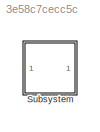
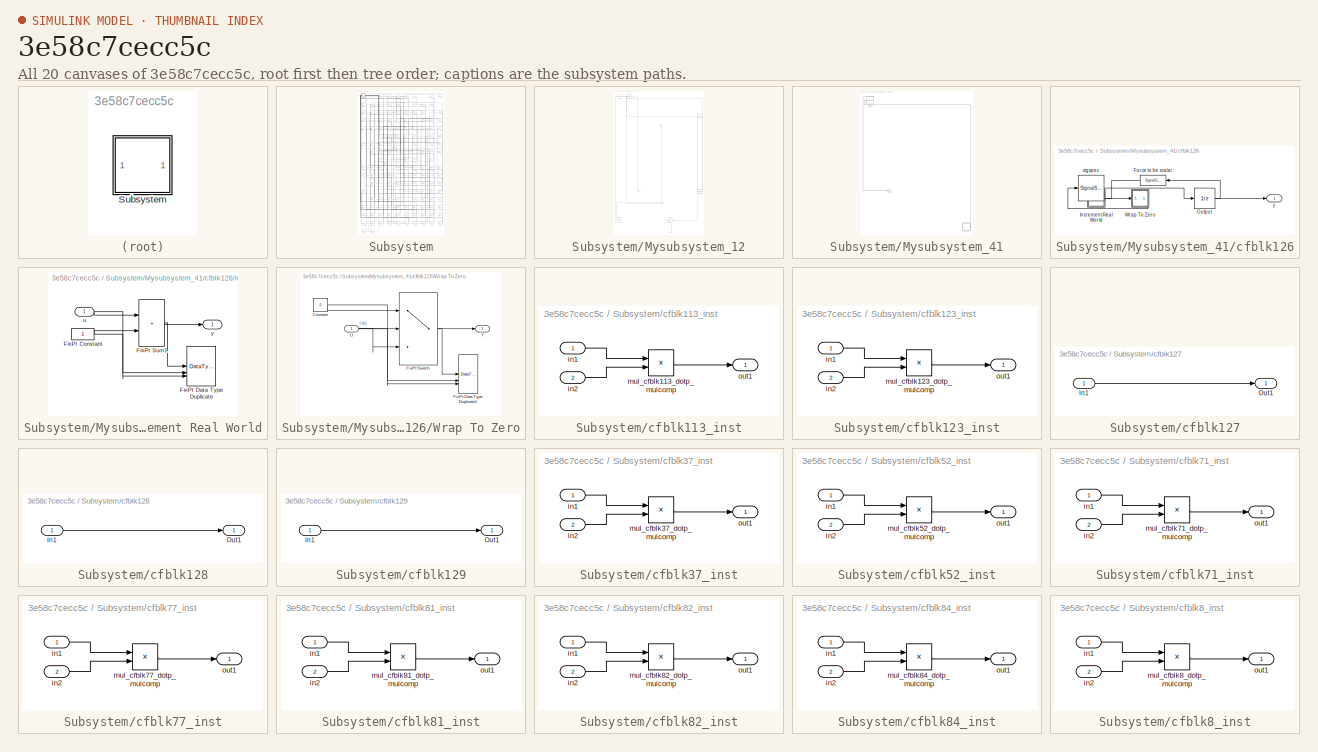
[diagram: thumbnail index - all 20 canvases of the model, root first then tree order]
MODEL slx_3e58c7cecc5c
KIND model
CONFIG AbsTol = auto
CONFIG EnableMultiTasking = off
CONFIG FixedStep = auto
CONFIG MaxStep = auto
CONFIG MinStep = auto
CONFIG RelTol = 1e-3
CONFIG SampleTimeConstraint = Unconstrained
CONFIG SolverName = VariableStepAuto
CONFIG StartTime = 0.0
CONFIG StopTime = 10.0
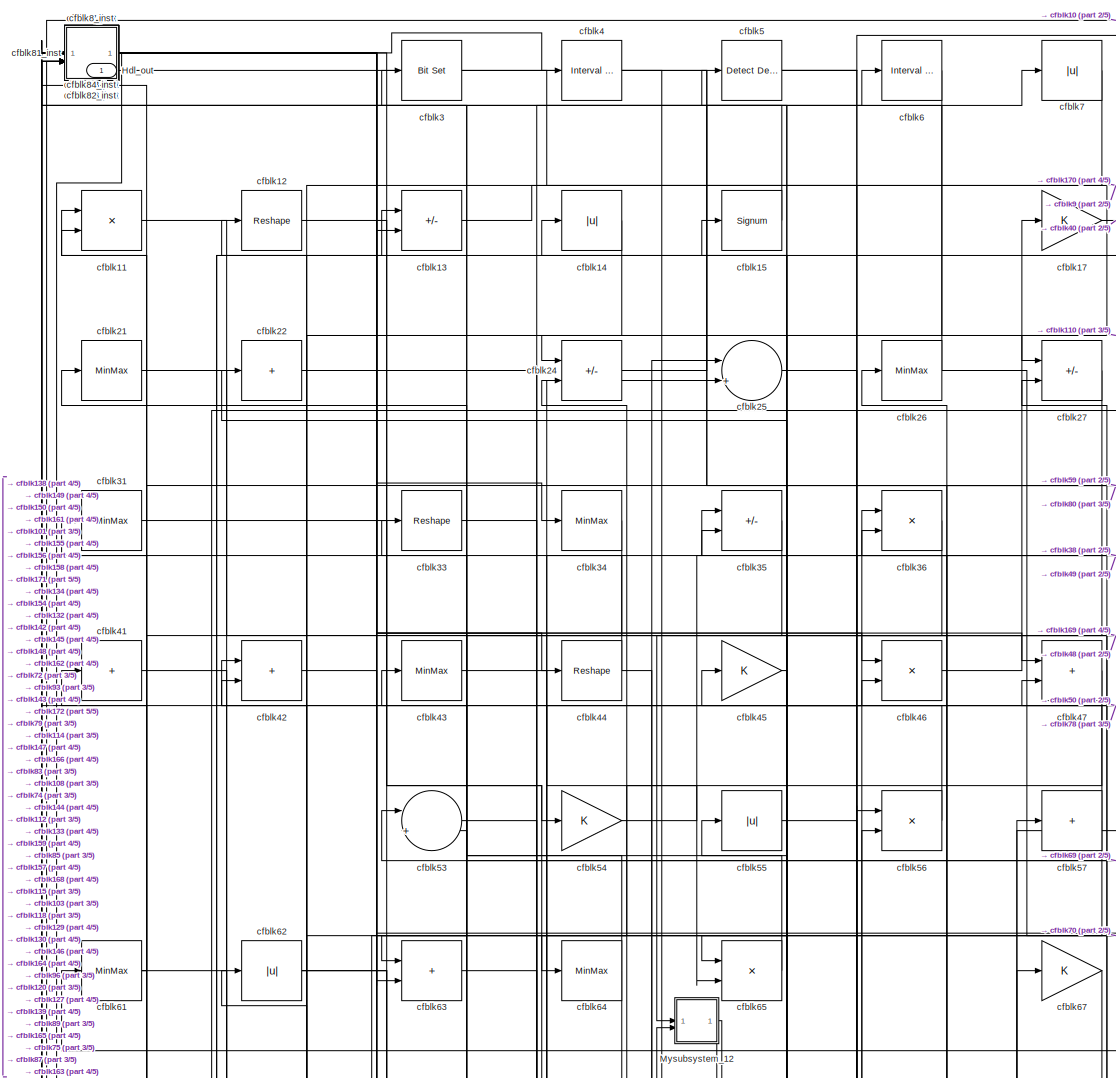
[diagram: Subsystem - part 1/5, top center region]
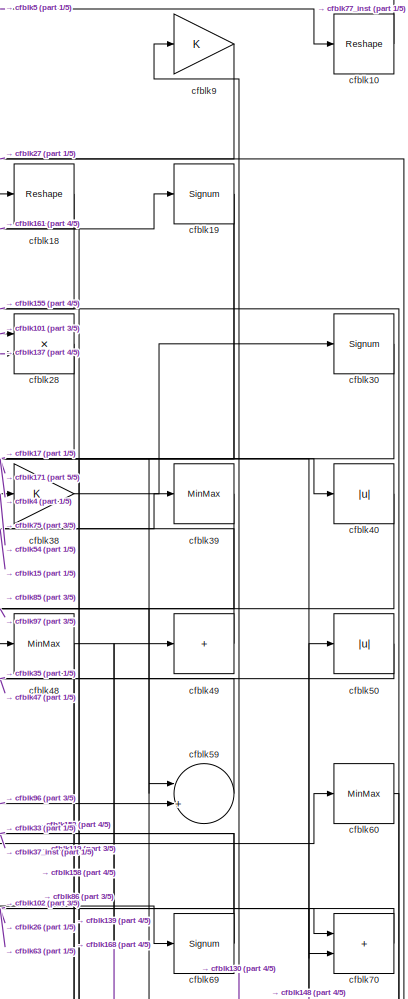
[diagram: Subsystem - part 2/5, top right region]
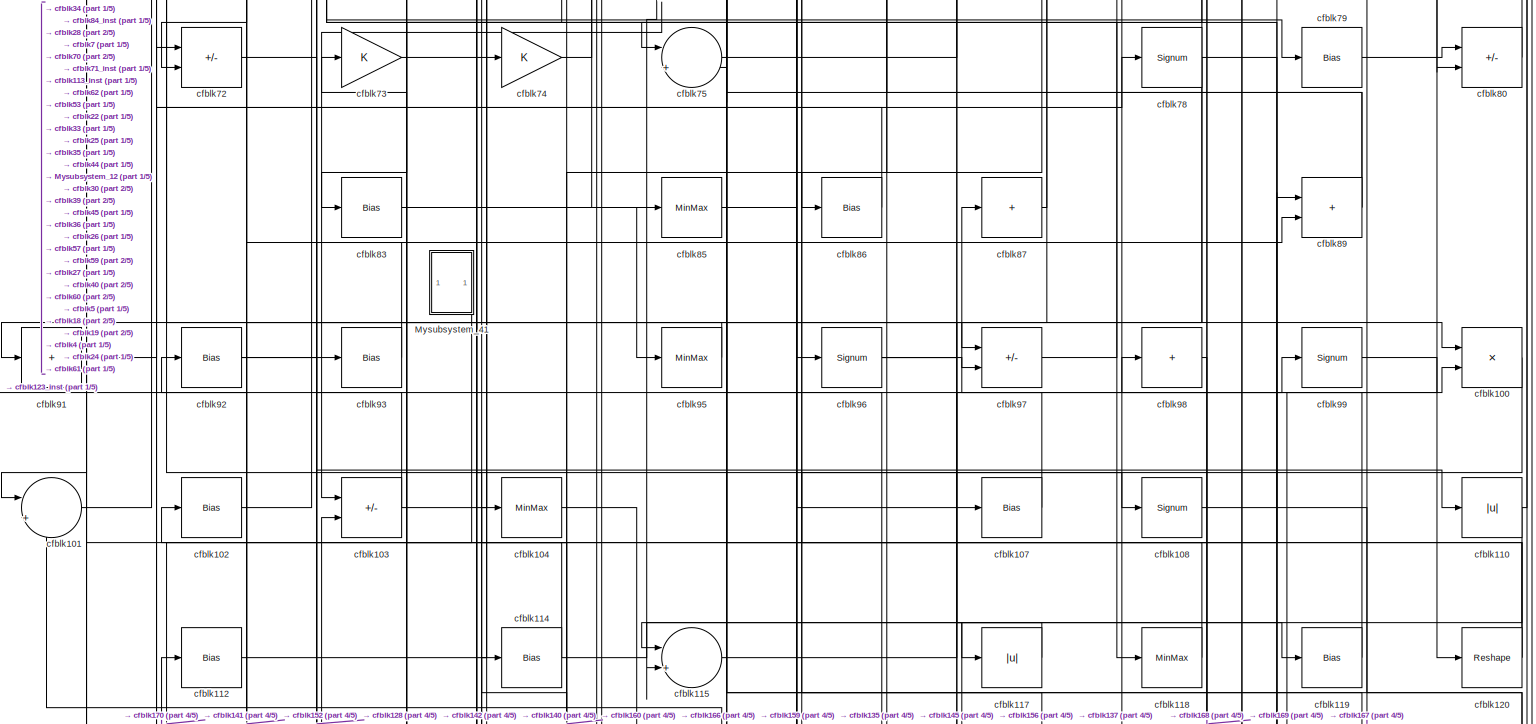
[diagram: Subsystem - part 3/5, full width, middle band]
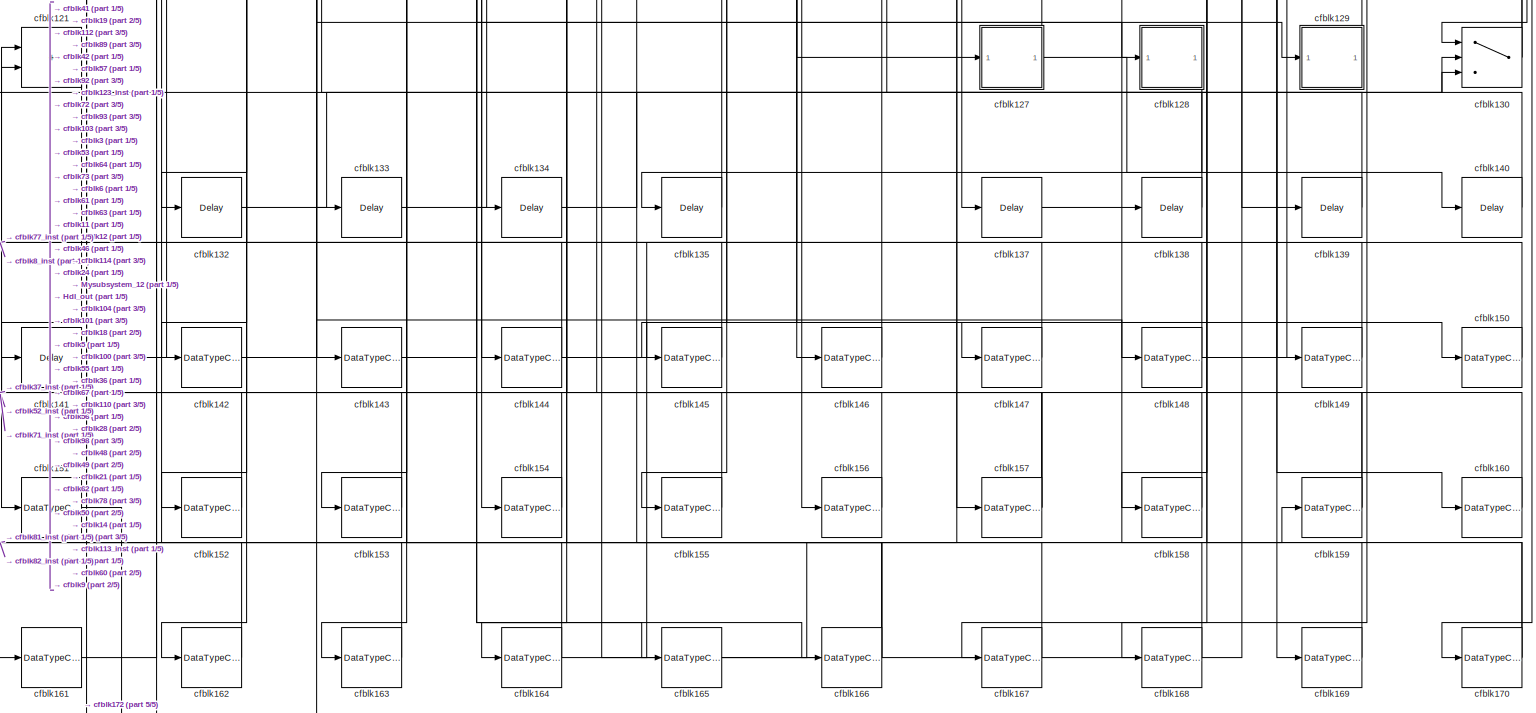
[diagram: Subsystem - part 4/5, full width, bottom band]
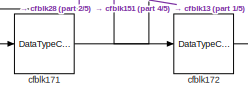
[diagram: Subsystem - part 5/5, bottom left region]
BLOCK [SubSystem] Subsystem
BLOCK [Outport] Subsystem/Hdl_out
  OutDataTypeStr = uint8
  SampleTime = 1
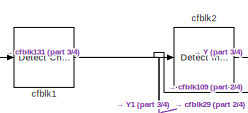
[diagram: Subsystem/Mysubsystem_12 - part 1/4, top left region]
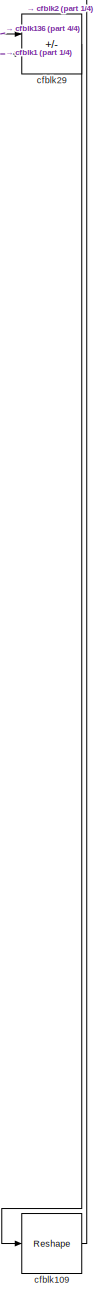
[diagram: Subsystem/Mysubsystem_12 - part 2/4, middle right region]
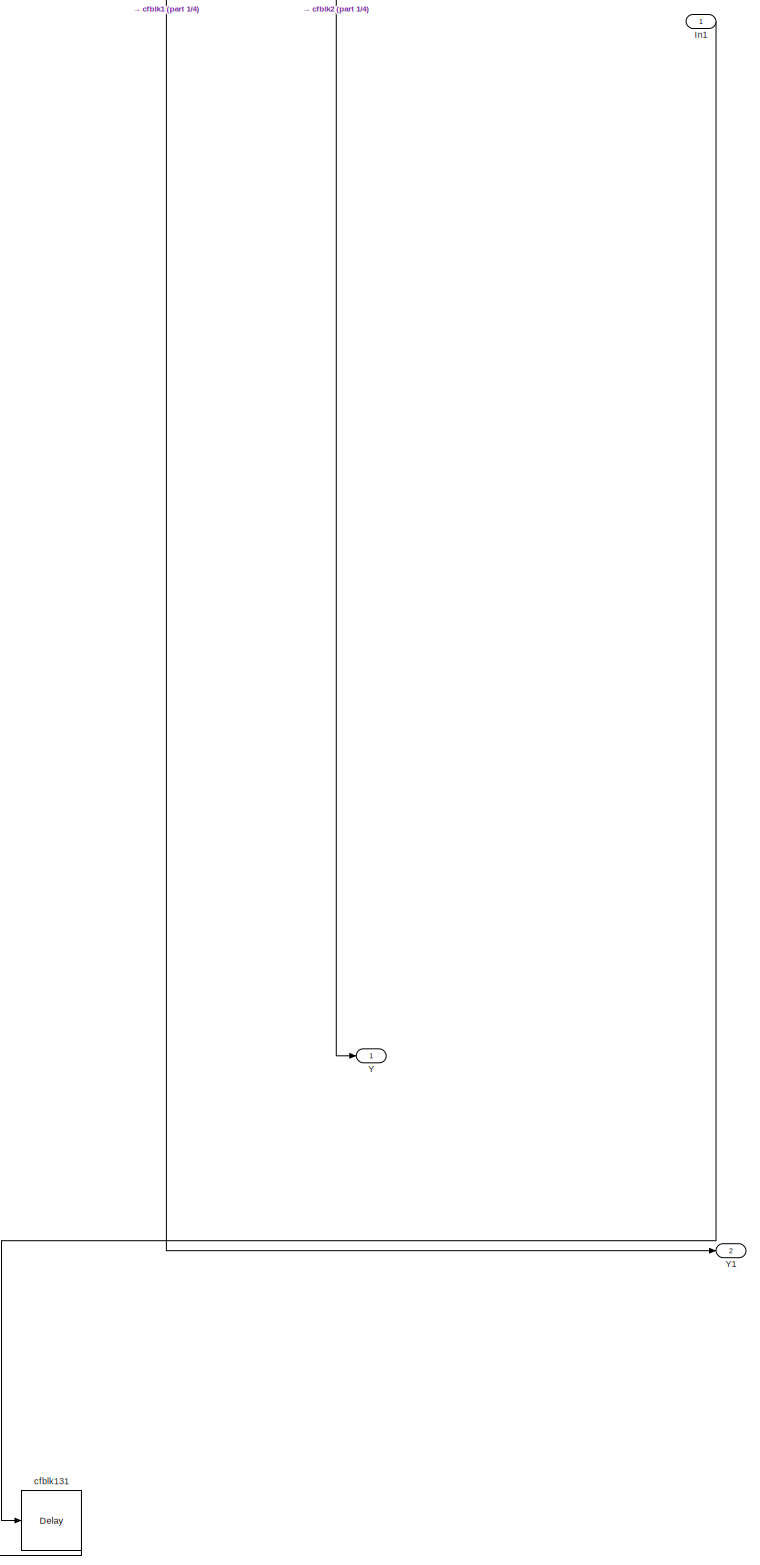
[diagram: Subsystem/Mysubsystem_12 - part 3/4, middle left region]
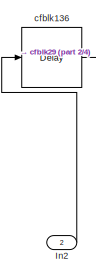
[diagram: Subsystem/Mysubsystem_12 - part 4/4, bottom center region]
BLOCK [SubSystem] Subsystem/Mysubsystem_12
BLOCK [Inport] Subsystem/Mysubsystem_12/In1
  OutDataTypeStr = uint8
  PortDimensions = 1
  SampleTime = 1
BLOCK [Inport] Subsystem/Mysubsystem_12/In2
  OutDataTypeStr = uint8
  Port = 2
  PortDimensions = 1
  SampleTime = 1
BLOCK [Outport] Subsystem/Mysubsystem_12/Y
  SampleTime = 1
BLOCK [Outport] Subsystem/Mysubsystem_12/Y1
  Port = 2
  SampleTime = 1
BLOCK [Reference] Subsystem/Mysubsystem_12/cfblk1  REF=simulink/Logic and Bit
Operations/Detect
Change
  LibrarySourceBlock = hdlsllib/Logic and Bit\nOperations/Detect\nChange
  SourceBlock = simulink/Logic and Bit\nOperations/Detect\nChange
  SourceType = Detect Change
BLOCK [Reshape] Subsystem/Mysubsystem_12/cfblk109
BLOCK [Delay] Subsystem/Mysubsystem_12/cfblk131
  InputPortMap = u0
  SampleTime = 1
BLOCK [Delay] Subsystem/Mysubsystem_12/cfblk136
  InputPortMap = u0
  SampleTime = 1
BLOCK [Reference] Subsystem/Mysubsystem_12/cfblk2  REF=simulink/Logic and Bit
Operations/Detect
Increase
  LibrarySourceBlock = hdlsllib/Logic and Bit\nOperations/Detect\nIncrease
  SourceBlock = simulink/Logic and Bit\nOperations/Detect\nIncrease
  SourceType = Detect Increase
BLOCK [Sum] Subsystem/Mysubsystem_12/cfblk29
  IconShape = rectangular
  Inputs = +-
BLOCK [SubSystem] Subsystem/Mysubsystem_41
BLOCK [Outport] Subsystem/Mysubsystem_41/Out1
  SampleTime = 1
BLOCK [SubSystem] Subsystem/Mysubsystem_41/cfblk126
BLOCK [SignalSpecification] Subsystem/Mysubsystem_41/cfblk126/Force to be scalar
  Dimensions = 1
  DisableCoverage = on
BLOCK [SubSystem] Subsystem/Mysubsystem_41/cfblk126/Increment Real World
BLOCK [Constant] Subsystem/Mysubsystem_41/cfblk126/Increment Real World/FixPt Constant
  DisableCoverage = on
  OutDataTypeStr = Inherit: Inherit via back propagation
  SampleTime = -1
BLOCK [DataTypeDuplicate] Subsystem/Mysubsystem_41/cfblk126/Increment Real World/FixPt Data Type Duplicate
  DisableCoverage = on
  NumInputPorts = 3
BLOCK [Sum] Subsystem/Mysubsystem_41/cfblk126/Increment Real World/FixPt Sum1
  IconShape = rectangular
  InputSameDT = on
  LockScale = on
  OutDataTypeStr = Inherit: Inherit via back propagation
BLOCK [Inport] Subsystem/Mysubsystem_41/cfblk126/Increment Real World/u
  OutDataTypeStr = uint16
  SampleTime = 1
BLOCK [Outport] Subsystem/Mysubsystem_41/cfblk126/Increment Real World/y
  SampleTime = 1
BLOCK [UnitDelay] Subsystem/Mysubsystem_41/cfblk126/Output
  HasFrameUpgradeWarning = on
  InitialCondition = 0.0
  SampleTime = tsamp
BLOCK [SubSystem] Subsystem/Mysubsystem_41/cfblk126/Wrap To Zero
BLOCK [Constant] Subsystem/Mysubsystem_41/cfblk126/Wrap To Zero/Constant
  DisableCoverage = on
  OutDataTypeStr = Inherit: Inherit via back propagation
  SampleTime = -1
  Value = 0
BLOCK [DataTypeDuplicate] Subsystem/Mysubsystem_41/cfblk126/Wrap To Zero/FixPt Data Type Duplicate1
  DisableCoverage = on
  NumInputPorts = 3
BLOCK [Switch] Subsystem/Mysubsystem_41/cfblk126/Wrap To Zero/FixPt Switch
  Criteria = u2 > Threshold
  InputSameDT = off
  OutDataTypeStr = Inherit: Inherit via back propagation
  SaturateOnIntegerOverflow = off
  Threshold = Threshold
  ZeroCross = off
BLOCK [Inport] Subsystem/Mysubsystem_41/cfblk126/Wrap To Zero/U
  OutDataTypeStr = uint16
  SampleTime = 1
BLOCK [Outport] Subsystem/Mysubsystem_41/cfblk126/Wrap To Zero/Y
  SampleTime = 1
BLOCK [SignalSpecification] Subsystem/Mysubsystem_41/cfblk126/sigspec
  Dimensions = 1
  OutDataTypeStr = uint16
BLOCK [Outport] Subsystem/Mysubsystem_41/cfblk126/y
  SampleTime = 1
BLOCK [Reshape] Subsystem/Mysubsystem_41/cfblk51
BLOCK [Reshape] Subsystem/cfblk10
BLOCK [Product] Subsystem/cfblk100
  Inputs = */
  OutDataTypeStr = uint8
  RndMeth = Zero
  SaturateOnIntegerOverflow = on
BLOCK [Sum] Subsystem/cfblk101
  Inputs = |++
  OutDataTypeStr = uint8
BLOCK [Bias] Subsystem/cfblk102
  Bias = 0.0
  SaturateOnIntegerOverflow = off
BLOCK [Sum] Subsystem/cfblk103
  IconShape = rectangular
  Inputs = +-
  OutDataTypeStr = uint8
BLOCK [MinMax] Subsystem/cfblk104
  OutDataTypeStr = uint8
BLOCK [Bias] Subsystem/cfblk107
  Bias = 0.0
  SaturateOnIntegerOverflow = off
BLOCK [Signum] Subsystem/cfblk108
BLOCK [Product] Subsystem/cfblk11
  Inputs = */
  OutDataTypeStr = uint8
  RndMeth = Zero
  SaturateOnIntegerOverflow = on
BLOCK [Abs] Subsystem/cfblk110
  OutDataTypeStr = uint8
  SaturateOnIntegerOverflow = off
BLOCK [Bias] Subsystem/cfblk112
  Bias = 0.0
  SaturateOnIntegerOverflow = off
BLOCK [SubSystem] Subsystem/cfblk113_inst
BLOCK [Inport] Subsystem/cfblk113_inst/in1
  OutDataTypeStr = uint8
  SampleTime = 1
BLOCK [Inport] Subsystem/cfblk113_inst/in2
  OutDataTypeStr = uint8
  Port = 2
  SampleTime = 1
BLOCK [Product] Subsystem/cfblk113_inst/mul_cfblk113_dotp_mulcomp
  Inputs = **
  OutDataTypeStr = uint8
  SampleTime = 1
BLOCK [Outport] Subsystem/cfblk113_inst/out1
  OutDataTypeStr = uint8
  SampleTime = 1
BLOCK [Bias] Subsystem/cfblk114
  Bias = 0.0
  SaturateOnIntegerOverflow = off
BLOCK [Sum] Subsystem/cfblk115
  Inputs = |++
  OutDataTypeStr = uint8
BLOCK [Abs] Subsystem/cfblk117
  OutDataTypeStr = uint8
  SaturateOnIntegerOverflow = off
BLOCK [MinMax] Subsystem/cfblk118
  OutDataTypeStr = uint8
BLOCK [Bias] Subsystem/cfblk119
  Bias = 0.0
  SaturateOnIntegerOverflow = off
BLOCK [Reshape] Subsystem/cfblk12
BLOCK [Reshape] Subsystem/cfblk120
BLOCK [Sum] Subsystem/cfblk121
  IconShape = rectangular
  OutDataTypeStr = uint8
BLOCK [SubSystem] Subsystem/cfblk123_inst
BLOCK [Inport] Subsystem/cfblk123_inst/in1
  OutDataTypeStr = uint8
  SampleTime = 1
BLOCK [Inport] Subsystem/cfblk123_inst/in2
  OutDataTypeStr = uint8
  Port = 2
  SampleTime = 1
BLOCK [Product] Subsystem/cfblk123_inst/mul_cfblk123_dotp_mulcomp
  Inputs = **
  OutDataTypeStr = uint8
  SampleTime = 1
BLOCK [Outport] Subsystem/cfblk123_inst/out1
  OutDataTypeStr = uint8
  SampleTime = 1
BLOCK [SubSystem] Subsystem/cfblk127
BLOCK [Inport] Subsystem/cfblk127/In1
  OutDataTypeStr = uint8
  PortDimensions = 1
  SampleTime = 1
BLOCK [Outport] Subsystem/cfblk127/Out1
  SampleTime = 1
BLOCK [SubSystem] Subsystem/cfblk128
BLOCK [Inport] Subsystem/cfblk128/In1
  OutDataTypeStr = uint8
  PortDimensions = 1
  SampleTime = 1
BLOCK [Outport] Subsystem/cfblk128/Out1
  SampleTime = 1
BLOCK [SubSystem] Subsystem/cfblk129
BLOCK [Inport] Subsystem/cfblk129/In1
  OutDataTypeStr = uint8
  PortDimensions = 1
  SampleTime = 1
BLOCK [Outport] Subsystem/cfblk129/Out1
  SampleTime = 1
BLOCK [Sum] Subsystem/cfblk13
  IconShape = rectangular
  Inputs = +-
  OutDataTypeStr = uint8
BLOCK [Switch] Subsystem/cfblk130
  InputSameDT = off
  OutDataTypeStr = uint8
  SaturateOnIntegerOverflow = off
BLOCK [Delay] Subsystem/cfblk132
  InputPortMap = u0
  SampleTime = 1
BLOCK [Delay] Subsystem/cfblk133
  InputPortMap = u0
  SampleTime = 1
BLOCK [Delay] Subsystem/cfblk134
  InputPortMap = u0
  SampleTime = 1
BLOCK [Delay] Subsystem/cfblk135
  InputPortMap = u0
  SampleTime = 1
BLOCK [Delay] Subsystem/cfblk137
  InputPortMap = u0
  SampleTime = 1
BLOCK [Delay] Subsystem/cfblk138
  InputPortMap = u0
  SampleTime = 1
BLOCK [Delay] Subsystem/cfblk139
  InputPortMap = u0
  SampleTime = 1
BLOCK [Abs] Subsystem/cfblk14
  OutDataTypeStr = uint8
  SaturateOnIntegerOverflow = off
BLOCK [Delay] Subsystem/cfblk140
  InputPortMap = u0
  SampleTime = 1
BLOCK [Delay] Subsystem/cfblk141
  InputPortMap = u0
  SampleTime = 1
BLOCK [DataTypeConversion] Subsystem/cfblk142
  OutDataTypeStr = uint8
  RndMeth = Floor
  SaturateOnIntegerOverflow = off
BLOCK [DataTypeConversion] Subsystem/cfblk143
  OutDataTypeStr = uint8
  RndMeth = Floor
  SaturateOnIntegerOverflow = off
BLOCK [DataTypeConversion] Subsystem/cfblk144
  OutDataTypeStr = uint8
  RndMeth = Floor
  SaturateOnIntegerOverflow = off
BLOCK [DataTypeConversion] Subsystem/cfblk145
  OutDataTypeStr = uint8
  RndMeth = Floor
  SaturateOnIntegerOverflow = off
BLOCK [DataTypeConversion] Subsystem/cfblk146
  OutDataTypeStr = uint8
  RndMeth = Floor
  SaturateOnIntegerOverflow = off
BLOCK [DataTypeConversion] Subsystem/cfblk147
  OutDataTypeStr = uint8
  RndMeth = Floor
  SaturateOnIntegerOverflow = off
BLOCK [DataTypeConversion] Subsystem/cfblk148
  OutDataTypeStr = uint8
  RndMeth = Floor
  SaturateOnIntegerOverflow = off
BLOCK [DataTypeConversion] Subsystem/cfblk149
  OutDataTypeStr = uint8
  RndMeth = Floor
  SaturateOnIntegerOverflow = off
BLOCK [Signum] Subsystem/cfblk15
BLOCK [DataTypeConversion] Subsystem/cfblk150
  OutDataTypeStr = uint8
  RndMeth = Floor
  SaturateOnIntegerOverflow = off
BLOCK [DataTypeConversion] Subsystem/cfblk151
  OutDataTypeStr = uint8
  RndMeth = Floor
  SaturateOnIntegerOverflow = off
BLOCK [DataTypeConversion] Subsystem/cfblk152
  OutDataTypeStr = uint8
  RndMeth = Floor
  SaturateOnIntegerOverflow = off
BLOCK [DataTypeConversion] Subsystem/cfblk153
  OutDataTypeStr = uint8
  RndMeth = Floor
  SaturateOnIntegerOverflow = off
BLOCK [DataTypeConversion] Subsystem/cfblk154
  OutDataTypeStr = uint8
  RndMeth = Floor
  SaturateOnIntegerOverflow = off
BLOCK [DataTypeConversion] Subsystem/cfblk155
  OutDataTypeStr = uint8
  RndMeth = Floor
  SaturateOnIntegerOverflow = off
BLOCK [DataTypeConversion] Subsystem/cfblk156
  OutDataTypeStr = uint8
  RndMeth = Floor
  SaturateOnIntegerOverflow = off
BLOCK [DataTypeConversion] Subsystem/cfblk157
  OutDataTypeStr = uint8
  RndMeth = Floor
  SaturateOnIntegerOverflow = off
BLOCK [DataTypeConversion] Subsystem/cfblk158
  OutDataTypeStr = uint8
  RndMeth = Floor
  SaturateOnIntegerOverflow = off
BLOCK [DataTypeConversion] Subsystem/cfblk159
  OutDataTypeStr = uint8
  RndMeth = Floor
  SaturateOnIntegerOverflow = off
BLOCK [DataTypeConversion] Subsystem/cfblk160
  OutDataTypeStr = uint8
  RndMeth = Floor
  SaturateOnIntegerOverflow = off
BLOCK [DataTypeConversion] Subsystem/cfblk161
  OutDataTypeStr = uint8
  RndMeth = Floor
  SaturateOnIntegerOverflow = off
BLOCK [DataTypeConversion] Subsystem/cfblk162
  OutDataTypeStr = uint8
  RndMeth = Floor
  SaturateOnIntegerOverflow = off
BLOCK [DataTypeConversion] Subsystem/cfblk163
  OutDataTypeStr = uint8
  RndMeth = Floor
  SaturateOnIntegerOverflow = off
BLOCK [DataTypeConversion] Subsystem/cfblk164
  OutDataTypeStr = uint8
  RndMeth = Floor
  SaturateOnIntegerOverflow = off
BLOCK [DataTypeConversion] Subsystem/cfblk165
  OutDataTypeStr = uint8
  RndMeth = Floor
  SaturateOnIntegerOverflow = off
BLOCK [DataTypeConversion] Subsystem/cfblk166
  OutDataTypeStr = uint8
  RndMeth = Floor
  SaturateOnIntegerOverflow = off
BLOCK [DataTypeConversion] Subsystem/cfblk167
  OutDataTypeStr = uint8
  RndMeth = Floor
  SaturateOnIntegerOverflow = off
BLOCK [DataTypeConversion] Subsystem/cfblk168
  OutDataTypeStr = uint8
  RndMeth = Floor
  SaturateOnIntegerOverflow = off
BLOCK [DataTypeConversion] Subsystem/cfblk169
  OutDataTypeStr = uint8
  RndMeth = Floor
  SaturateOnIntegerOverflow = off
BLOCK [Gain] Subsystem/cfblk17
  OutDataTypeStr = uint8
BLOCK [DataTypeConversion] Subsystem/cfblk170
  OutDataTypeStr = uint8
  RndMeth = Floor
  SaturateOnIntegerOverflow = off
BLOCK [DataTypeConversion] Subsystem/cfblk171
  OutDataTypeStr = uint8
  RndMeth = Floor
  SaturateOnIntegerOverflow = off
BLOCK [DataTypeConversion] Subsystem/cfblk172
  OutDataTypeStr = uint8
  RndMeth = Floor
  SaturateOnIntegerOverflow = off
BLOCK [Reshape] Subsystem/cfblk18
BLOCK [Signum] Subsystem/cfblk19
BLOCK [MinMax] Subsystem/cfblk21
  OutDataTypeStr = uint8
BLOCK [Sum] Subsystem/cfblk22
  IconShape = rectangular
  Inputs = +
  OutDataTypeStr = uint8
BLOCK [Sum] Subsystem/cfblk24
  IconShape = rectangular
  Inputs = +-
  OutDataTypeStr = uint8
BLOCK [Sum] Subsystem/cfblk25
  Inputs = |++
  OutDataTypeStr = uint8
BLOCK [MinMax] Subsystem/cfblk26
  OutDataTypeStr = uint8
BLOCK [Sum] Subsystem/cfblk27
  IconShape = rectangular
  Inputs = +-
  OutDataTypeStr = uint8
BLOCK [Product] Subsystem/cfblk28
  Inputs = */
  OutDataTypeStr = uint8
  RndMeth = Zero
  SaturateOnIntegerOverflow = on
BLOCK [Reference] Subsystem/cfblk3  REF=simulink/Logic and Bit
Operations/Bit Set
  LibrarySourceBlock = hdlsllib/Logic and Bit\nOperations/Bit Set
  SourceBlock = simulink/Logic and Bit\nOperations/Bit Set
  SourceType = Bit Set
BLOCK [Signum] Subsystem/cfblk30
BLOCK [MinMax] Subsystem/cfblk31
  OutDataTypeStr = uint8
BLOCK [Reshape] Subsystem/cfblk33
BLOCK [MinMax] Subsystem/cfblk34
  OutDataTypeStr = uint8
BLOCK [Sum] Subsystem/cfblk35
  IconShape = rectangular
  Inputs = +-
  OutDataTypeStr = uint8
BLOCK [Product] Subsystem/cfblk36
  Inputs = */
  OutDataTypeStr = uint8
  RndMeth = Zero
  SaturateOnIntegerOverflow = on
BLOCK [SubSystem] Subsystem/cfblk37_inst
BLOCK [Inport] Subsystem/cfblk37_inst/in1
  OutDataTypeStr = uint8
  SampleTime = 1
BLOCK [Inport] Subsystem/cfblk37_inst/in2
  OutDataTypeStr = uint8
  Port = 2
  SampleTime = 1
BLOCK [Product] Subsystem/cfblk37_inst/mul_cfblk37_dotp_mulcomp
  Inputs = **
  OutDataTypeStr = uint8
  SampleTime = 1
BLOCK [Outport] Subsystem/cfblk37_inst/out1
  OutDataTypeStr = uint8
  SampleTime = 1
BLOCK [Gain] Subsystem/cfblk38
  OutDataTypeStr = uint8
BLOCK [MinMax] Subsystem/cfblk39
  OutDataTypeStr = uint8
BLOCK [Reference] Subsystem/cfblk4  REF=hdlsllib/Logic and Bit
Operations/Interval Test
  SourceBlock = hdlsllib/Logic and Bit\nOperations/Interval Test
  SourceType = Interval Test
BLOCK [Abs] Subsystem/cfblk40
  OutDataTypeStr = uint8
  SaturateOnIntegerOverflow = off
BLOCK [Sum] Subsystem/cfblk41
  IconShape = rectangular
  Inputs = +
  OutDataTypeStr = uint8
BLOCK [Sum] Subsystem/cfblk42
  IconShape = rectangular
  OutDataTypeStr = uint8
BLOCK [MinMax] Subsystem/cfblk43
  OutDataTypeStr = uint8
BLOCK [Reshape] Subsystem/cfblk44
BLOCK [Gain] Subsystem/cfblk45
  OutDataTypeStr = uint8
BLOCK [Product] Subsystem/cfblk46
  Inputs = */
  OutDataTypeStr = uint8
  RndMeth = Zero
  SaturateOnIntegerOverflow = on
BLOCK [Sum] Subsystem/cfblk47
  IconShape = rectangular
  OutDataTypeStr = uint8
BLOCK [MinMax] Subsystem/cfblk48
  OutDataTypeStr = uint8
BLOCK [Sum] Subsystem/cfblk49
  IconShape = rectangular
  Inputs = +
  OutDataTypeStr = uint8
BLOCK [Reference] Subsystem/cfblk5  REF=simulink/Logic and Bit
Operations/Detect
Decrease
  LibrarySourceBlock = hdlsllib/Logic and Bit\nOperations/Detect\nDecrease
  SourceBlock = simulink/Logic and Bit\nOperations/Detect\nDecrease
  SourceType = Detect Decrease
BLOCK [Abs] Subsystem/cfblk50
  OutDataTypeStr = uint8
  SaturateOnIntegerOverflow = off
BLOCK [SubSystem] Subsystem/cfblk52_inst
BLOCK [Inport] Subsystem/cfblk52_inst/in1
  OutDataTypeStr = uint8
  SampleTime = 1
BLOCK [Inport] Subsystem/cfblk52_inst/in2
  OutDataTypeStr = uint8
  Port = 2
  SampleTime = 1
BLOCK [Product] Subsystem/cfblk52_inst/mul_cfblk52_dotp_mulcomp
  Inputs = **
  OutDataTypeStr = uint8
  SampleTime = 1
BLOCK [Outport] Subsystem/cfblk52_inst/out1
  OutDataTypeStr = uint8
  SampleTime = 1
BLOCK [Sum] Subsystem/cfblk53
  Inputs = |++
  OutDataTypeStr = uint8
BLOCK [Gain] Subsystem/cfblk54
  OutDataTypeStr = uint8
BLOCK [Abs] Subsystem/cfblk55
  OutDataTypeStr = uint8
  SaturateOnIntegerOverflow = off
BLOCK [Product] Subsystem/cfblk56
  Inputs = */
  OutDataTypeStr = uint8
  RndMeth = Zero
  SaturateOnIntegerOverflow = on
BLOCK [Sum] Subsystem/cfblk57
  IconShape = rectangular
  Inputs = +
  OutDataTypeStr = uint8
BLOCK [Sum] Subsystem/cfblk59
  Inputs = |++
  OutDataTypeStr = uint8
BLOCK [Reference] Subsystem/cfblk6  REF=hdlsllib/Logic and Bit
Operations/Interval Test
  SourceBlock = hdlsllib/Logic and Bit\nOperations/Interval Test
  SourceType = Interval Test
BLOCK [MinMax] Subsystem/cfblk60
  OutDataTypeStr = uint8
BLOCK [MinMax] Subsystem/cfblk61
  OutDataTypeStr = uint8
BLOCK [Abs] Subsystem/cfblk62
  OutDataTypeStr = uint8
  SaturateOnIntegerOverflow = off
BLOCK [Sum] Subsystem/cfblk63
  IconShape = rectangular
  OutDataTypeStr = uint8
BLOCK [MinMax] Subsystem/cfblk64
  OutDataTypeStr = uint8
BLOCK [Product] Subsystem/cfblk65
  Inputs = */
  OutDataTypeStr = uint8
  RndMeth = Zero
  SaturateOnIntegerOverflow = on
BLOCK [Gain] Subsystem/cfblk67
  OutDataTypeStr = uint8
BLOCK [Signum] Subsystem/cfblk69
BLOCK [Abs] Subsystem/cfblk7
  OutDataTypeStr = uint8
  SaturateOnIntegerOverflow = off
BLOCK [Sum] Subsystem/cfblk70
  IconShape = rectangular
  OutDataTypeStr = uint8
BLOCK [SubSystem] Subsystem/cfblk71_inst
BLOCK [Inport] Subsystem/cfblk71_inst/in1
  OutDataTypeStr = uint8
  SampleTime = 1
BLOCK [Inport] Subsystem/cfblk71_inst/in2
  OutDataTypeStr = uint8
  Port = 2
  SampleTime = 1
BLOCK [Product] Subsystem/cfblk71_inst/mul_cfblk71_dotp_mulcomp
  Inputs = **
  OutDataTypeStr = uint8
  SampleTime = 1
BLOCK [Outport] Subsystem/cfblk71_inst/out1
  OutDataTypeStr = uint8
  SampleTime = 1
BLOCK [Sum] Subsystem/cfblk72
  IconShape = rectangular
  Inputs = +-
  OutDataTypeStr = uint8
BLOCK [Gain] Subsystem/cfblk73
  OutDataTypeStr = uint8
BLOCK [Gain] Subsystem/cfblk74
  OutDataTypeStr = uint8
BLOCK [Sum] Subsystem/cfblk75
  Inputs = |++
  OutDataTypeStr = uint8
BLOCK [SubSystem] Subsystem/cfblk77_inst
BLOCK [Inport] Subsystem/cfblk77_inst/in1
  OutDataTypeStr = uint8
  SampleTime = 1
BLOCK [Inport] Subsystem/cfblk77_inst/in2
  OutDataTypeStr = uint8
  Port = 2
  SampleTime = 1
BLOCK [Product] Subsystem/cfblk77_inst/mul_cfblk77_dotp_mulcomp
  Inputs = **
  OutDataTypeStr = uint8
  SampleTime = 1
BLOCK [Outport] Subsystem/cfblk77_inst/out1
  OutDataTypeStr = uint8
  SampleTime = 1
BLOCK [Signum] Subsystem/cfblk78
BLOCK [Bias] Subsystem/cfblk79
  Bias = 0.0
  SaturateOnIntegerOverflow = off
BLOCK [Sum] Subsystem/cfblk80
  IconShape = rectangular
  Inputs = +-
  OutDataTypeStr = uint8
BLOCK [SubSystem] Subsystem/cfblk81_inst
BLOCK [Inport] Subsystem/cfblk81_inst/in1
  OutDataTypeStr = uint8
  SampleTime = 1
BLOCK [Inport] Subsystem/cfblk81_inst/in2
  OutDataTypeStr = uint8
  Port = 2
  SampleTime = 1
BLOCK [Product] Subsystem/cfblk81_inst/mul_cfblk81_dotp_mulcomp
  Inputs = **
  OutDataTypeStr = uint8
  SampleTime = 1
BLOCK [Outport] Subsystem/cfblk81_inst/out1
  OutDataTypeStr = uint8
  SampleTime = 1
BLOCK [SubSystem] Subsystem/cfblk82_inst
BLOCK [Inport] Subsystem/cfblk82_inst/in1
  OutDataTypeStr = uint8
  SampleTime = 1
BLOCK [Inport] Subsystem/cfblk82_inst/in2
  OutDataTypeStr = uint8
  Port = 2
  SampleTime = 1
BLOCK [Product] Subsystem/cfblk82_inst/mul_cfblk82_dotp_mulcomp
  Inputs = **
  OutDataTypeStr = uint8
  SampleTime = 1
BLOCK [Outport] Subsystem/cfblk82_inst/out1
  OutDataTypeStr = uint8
  SampleTime = 1
BLOCK [Bias] Subsystem/cfblk83
  Bias = 0.0
  SaturateOnIntegerOverflow = off
BLOCK [SubSystem] Subsystem/cfblk84_inst
BLOCK [Inport] Subsystem/cfblk84_inst/in1
  OutDataTypeStr = uint8
  SampleTime = 1
BLOCK [Inport] Subsystem/cfblk84_inst/in2
  OutDataTypeStr = uint8
  Port = 2
  SampleTime = 1
BLOCK [Product] Subsystem/cfblk84_inst/mul_cfblk84_dotp_mulcomp
  Inputs = **
  OutDataTypeStr = uint8
  SampleTime = 1
BLOCK [Outport] Subsystem/cfblk84_inst/out1
  OutDataTypeStr = uint8
  SampleTime = 1
BLOCK [MinMax] Subsystem/cfblk85
  OutDataTypeStr = uint8
BLOCK [Bias] Subsystem/cfblk86
  Bias = 0.0
  SaturateOnIntegerOverflow = off
BLOCK [Sum] Subsystem/cfblk87
  IconShape = rectangular
  Inputs = +
  OutDataTypeStr = uint8
BLOCK [Sum] Subsystem/cfblk89
  IconShape = rectangular
  OutDataTypeStr = uint8
BLOCK [SubSystem] Subsystem/cfblk8_inst
BLOCK [Inport] Subsystem/cfblk8_inst/in1
  OutDataTypeStr = uint8
  SampleTime = 1
BLOCK [Inport] Subsystem/cfblk8_inst/in2
  OutDataTypeStr = uint8
  Port = 2
  SampleTime = 1
BLOCK [Product] Subsystem/cfblk8_inst/mul_cfblk8_dotp_mulcomp
  Inputs = **
  OutDataTypeStr = uint8
  SampleTime = 1
BLOCK [Outport] Subsystem/cfblk8_inst/out1
  OutDataTypeStr = uint8
  SampleTime = 1
BLOCK [Gain] Subsystem/cfblk9
  OutDataTypeStr = uint8
BLOCK [Sum] Subsystem/cfblk91
  IconShape = rectangular
  Inputs = +
  OutDataTypeStr = uint8
BLOCK [Bias] Subsystem/cfblk92
  Bias = 0.0
  SaturateOnIntegerOverflow = off
BLOCK [Bias] Subsystem/cfblk93
  Bias = 0.0
  SaturateOnIntegerOverflow = off
BLOCK [MinMax] Subsystem/cfblk95
  OutDataTypeStr = uint8
BLOCK [Signum] Subsystem/cfblk96
BLOCK [Sum] Subsystem/cfblk97
  IconShape = rectangular
  Inputs = +-
  OutDataTypeStr = uint8
BLOCK [Sum] Subsystem/cfblk98
  IconShape = rectangular
  Inputs = +
  OutDataTypeStr = uint8
BLOCK [Signum] Subsystem/cfblk99
ANNOTATION Subsystem/Mysubsystem_41/cfblk126/Wrap To Zero: U(k)
LINE Subsystem/Mysubsystem_12/In1:1 -> Subsystem/Mysubsystem_12/cfblk131:1
LINE Subsystem/Mysubsystem_12/In2:1 -> Subsystem/Mysubsystem_12/cfblk136:1
LINE Subsystem/Mysubsystem_12/cfblk109:1 -> Subsystem/Mysubsystem_12/cfblk2:1
LINE Subsystem/Mysubsystem_12/cfblk131:1 -> Subsystem/Mysubsystem_12/cfblk1:1
LINE Subsystem/Mysubsystem_12/cfblk136:1 -> Subsystem/Mysubsystem_12/cfblk29:1
NET Subsystem/Mysubsystem_12/cfblk1:1 -> Subsystem/Mysubsystem_12/Y1:1, Subsystem/Mysubsystem_12/cfblk29:2
LINE Subsystem/Mysubsystem_12/cfblk29:1 -> Subsystem/Mysubsystem_12/cfblk109:1
LINE Subsystem/Mysubsystem_12/cfblk2:1 -> Subsystem/Mysubsystem_12/Y:1
LINE Subsystem/Mysubsystem_12:1 -> Subsystem/cfblk103:1
LINE Subsystem/Mysubsystem_12:2 -> Subsystem/cfblk115:2
LINE Subsystem/Mysubsystem_41/cfblk126:1 -> Subsystem/Mysubsystem_41/cfblk51:1
LINE Subsystem/Mysubsystem_41/cfblk51:1 -> Subsystem/Mysubsystem_41/Out1:1
LINE Subsystem/Mysubsystem_41:1 -> Subsystem/cfblk102:1
LINE Subsystem/cfblk100:1 -> Subsystem/cfblk156:1
LINE Subsystem/cfblk101:1 -> Subsystem/cfblk28:1
LINE Subsystem/cfblk102:1 -> Subsystem/cfblk70:1
NET Subsystem/cfblk103:1 -> Subsystem/cfblk123_inst:2, Subsystem/cfblk25:2
LINE Subsystem/cfblk104:1 -> Subsystem/cfblk159:1
LINE Subsystem/cfblk107:1 -> Subsystem/cfblk87:1
LINE Subsystem/cfblk108:1 -> Subsystem/cfblk167:1
LINE Subsystem/cfblk10:1 -> Subsystem/cfblk77_inst:1
NET Subsystem/cfblk110:1 -> Subsystem/cfblk137:1, Subsystem/cfblk24:1
LINE Subsystem/cfblk112:1 -> Subsystem/cfblk35:1
LINE Subsystem/cfblk113_inst/in1:1 -> Subsystem/cfblk113_inst/mul_cfblk113_dotp_mulcomp:1
LINE Subsystem/cfblk113_inst/in2:1 -> Subsystem/cfblk113_inst/mul_cfblk113_dotp_mulcomp:2
LINE Subsystem/cfblk113_inst/mul_cfblk113_dotp_mulcomp:1 -> Subsystem/cfblk113_inst/out1:1
LINE Subsystem/cfblk113_inst:1 -> Subsystem/cfblk79:1
NET Subsystem/cfblk114:1 -> Subsystem/cfblk117:1, Subsystem/cfblk53:1
LINE Subsystem/cfblk115:1 -> Subsystem/cfblk99:1
LINE Subsystem/cfblk117:1 -> Subsystem/cfblk115:1
LINE Subsystem/cfblk118:1 -> Subsystem/cfblk45:1
LINE Subsystem/cfblk119:1 -> Subsystem/cfblk18:1
LINE Subsystem/cfblk11:1 -> Subsystem/cfblk154:1
NET Subsystem/cfblk120:1 -> Subsystem/cfblk36:1, Subsystem/cfblk84_inst:2
LINE Subsystem/cfblk121:1 -> Subsystem/cfblk151:1
LINE Subsystem/cfblk123_inst/in1:1 -> Subsystem/cfblk123_inst/mul_cfblk123_dotp_mulcomp:1
LINE Subsystem/cfblk123_inst/in2:1 -> Subsystem/cfblk123_inst/mul_cfblk123_dotp_mulcomp:2
LINE Subsystem/cfblk123_inst/mul_cfblk123_dotp_mulcomp:1 -> Subsystem/cfblk123_inst/out1:1
LINE Subsystem/cfblk123_inst:1 -> Subsystem/cfblk143:1
LINE Subsystem/cfblk127/In1:1 -> Subsystem/cfblk127/Out1:1
NET Subsystem/cfblk127:1 -> Subsystem/cfblk140:1, Subsystem/cfblk56:2
LINE Subsystem/cfblk128/In1:1 -> Subsystem/cfblk128/Out1:1
LINE Subsystem/cfblk128:1 -> Subsystem/cfblk135:1
LINE Subsystem/cfblk129/In1:1 -> Subsystem/cfblk129/Out1:1
LINE Subsystem/cfblk129:1 -> Subsystem/cfblk14:1
LINE Subsystem/cfblk12:1 -> Subsystem/cfblk144:1
NET Subsystem/cfblk130:1 -> Subsystem/cfblk113_inst:2, Subsystem/cfblk9:1
LINE Subsystem/cfblk132:1 -> Subsystem/cfblk130:2
LINE Subsystem/cfblk133:1 -> Subsystem/cfblk46:2
LINE Subsystem/cfblk134:1 -> Subsystem/cfblk130:3
LINE Subsystem/cfblk135:1 -> Subsystem/cfblk101:2
LINE Subsystem/cfblk137:1 -> Subsystem/cfblk28:2
LINE Subsystem/cfblk138:1 -> Subsystem/cfblk123_inst:1
LINE Subsystem/cfblk139:1 -> Subsystem/cfblk36:2
LINE Subsystem/cfblk13:1 -> Subsystem/cfblk170:1
LINE Subsystem/cfblk140:1 -> Subsystem/cfblk103:2
LINE Subsystem/cfblk141:1 -> Subsystem/cfblk89:1
NET Subsystem/cfblk142:1 -> Subsystem/cfblk89:2, Subsystem/cfblk93:1
LINE Subsystem/cfblk143:1 -> Subsystem/cfblk6:1
NET Subsystem/cfblk144:1 -> Subsystem/cfblk150:1, Subsystem/cfblk77_inst:2
LINE Subsystem/cfblk145:1 -> Subsystem/cfblk12:1
LINE Subsystem/cfblk146:1 -> Subsystem/cfblk55:1
LINE Subsystem/cfblk147:1 -> Subsystem/cfblk3:1
NET Subsystem/cfblk148:1 -> Subsystem/cfblk42:1, Subsystem/cfblk50:1
LINE Subsystem/cfblk149:1 -> Subsystem/cfblk8_inst:1
LINE Subsystem/cfblk14:1 -> Subsystem/cfblk162:1
LINE Subsystem/cfblk150:1 -> Subsystem/cfblk8_inst:2
LINE Subsystem/cfblk151:1 -> Subsystem/cfblk172:1
LINE Subsystem/cfblk152:1 -> Subsystem/cfblk121:1
LINE Subsystem/cfblk153:1 -> Subsystem/cfblk121:2
LINE Subsystem/cfblk154:1 -> Subsystem/cfblk52_inst:2
LINE Subsystem/cfblk155:1 -> Subsystem/cfblk11:1
LINE Subsystem/cfblk156:1 -> Subsystem/cfblk11:2
NET Subsystem/cfblk157:1 -> Subsystem/Mysubsystem_12:2, Subsystem/cfblk37_inst:2, Subsystem/cfblk71_inst:1
LINE Subsystem/cfblk158:1 -> Subsystem/cfblk41:1
NET Subsystem/cfblk159:1 -> Subsystem/cfblk24:2, Subsystem/cfblk92:1
LINE Subsystem/cfblk15:1 -> Subsystem/cfblk52_inst:1
LINE Subsystem/cfblk160:1 -> Subsystem/cfblk104:1
LINE Subsystem/cfblk161:1 -> Subsystem/cfblk19:1
LINE Subsystem/cfblk162:1 -> Subsystem/cfblk81_inst:1
LINE Subsystem/cfblk163:1 -> Subsystem/cfblk81_inst:2
NET Subsystem/cfblk164:1 -> Subsystem/cfblk56:1, Subsystem/cfblk82_inst:2
LINE Subsystem/cfblk165:1 -> Subsystem/cfblk67:1
NET Subsystem/cfblk166:1 -> Subsystem/cfblk114:1, Subsystem/cfblk141:1, Subsystem/cfblk53:2
LINE Subsystem/cfblk167:1 -> Subsystem/cfblk73:1
NET Subsystem/cfblk168:1 -> Subsystem/Hdl_out:1, Subsystem/cfblk138:1, Subsystem/cfblk49:1
LINE Subsystem/cfblk169:1 -> Subsystem/cfblk98:1
NET Subsystem/cfblk170:1 -> Subsystem/cfblk112:1, Subsystem/cfblk82_inst:1
LINE Subsystem/cfblk171:1 -> Subsystem/cfblk13:1
LINE Subsystem/cfblk172:1 -> Subsystem/cfblk13:2
LINE Subsystem/cfblk17:1 -> Subsystem/cfblk40:1
LINE Subsystem/cfblk18:1 -> Subsystem/cfblk155:1
NET Subsystem/cfblk19:1 -> Subsystem/cfblk158:1, Subsystem/cfblk86:1
LINE Subsystem/cfblk21:1 -> Subsystem/cfblk169:1
LINE Subsystem/cfblk22:1 -> Subsystem/cfblk108:1
LINE Subsystem/cfblk24:1 -> Subsystem/cfblk7:1
LINE Subsystem/cfblk25:1 -> Subsystem/cfblk96:1
NET Subsystem/cfblk26:1 -> Subsystem/cfblk70:2, Subsystem/cfblk84_inst:1
LINE Subsystem/cfblk27:1 -> Subsystem/cfblk63:1
LINE Subsystem/cfblk28:1 -> Subsystem/cfblk171:1
LINE Subsystem/cfblk30:1 -> Subsystem/cfblk75:2
LINE Subsystem/cfblk31:1 -> Subsystem/cfblk54:1
LINE Subsystem/cfblk33:1 -> Subsystem/cfblk74:1
LINE Subsystem/cfblk34:1 -> Subsystem/cfblk101:1
LINE Subsystem/cfblk35:1 -> Subsystem/Mysubsystem_12:1
LINE Subsystem/cfblk36:1 -> Subsystem/cfblk83:1
LINE Subsystem/cfblk37_inst/in1:1 -> Subsystem/cfblk37_inst/mul_cfblk37_dotp_mulcomp:1
LINE Subsystem/cfblk37_inst/in2:1 -> Subsystem/cfblk37_inst/mul_cfblk37_dotp_mulcomp:2
LINE Subsystem/cfblk37_inst/mul_cfblk37_dotp_mulcomp:1 -> Subsystem/cfblk37_inst/out1:1
LINE Subsystem/cfblk37_inst:1 -> Subsystem/cfblk4:1
LINE Subsystem/cfblk38:1 -> Subsystem/cfblk30:1
LINE Subsystem/cfblk39:1 -> Subsystem/cfblk75:1
LINE Subsystem/cfblk3:1 -> Subsystem/cfblk146:1
LINE Subsystem/cfblk40:1 -> Subsystem/cfblk97:1
LINE Subsystem/cfblk41:1 -> Subsystem/cfblk157:1
LINE Subsystem/cfblk42:1 -> Subsystem/cfblk133:1
LINE Subsystem/cfblk43:1 -> Subsystem/cfblk65:2
NET Subsystem/cfblk44:1 -> Subsystem/cfblk71_inst:2, Subsystem/cfblk85:1
LINE Subsystem/cfblk45:1 -> Subsystem/cfblk65:1
LINE Subsystem/cfblk46:1 -> Subsystem/cfblk17:1
LINE Subsystem/cfblk47:1 -> Subsystem/cfblk64:1
NET Subsystem/cfblk48:1 -> Subsystem/cfblk139:1, Subsystem/cfblk153:1
LINE Subsystem/cfblk49:1 -> Subsystem/cfblk15:1
NET Subsystem/cfblk4:1 -> Subsystem/cfblk59:1, Subsystem/cfblk80:2
LINE Subsystem/cfblk50:1 -> Subsystem/cfblk47:2
LINE Subsystem/cfblk52_inst/in1:1 -> Subsystem/cfblk52_inst/mul_cfblk52_dotp_mulcomp:1
LINE Subsystem/cfblk52_inst/in2:1 -> Subsystem/cfblk52_inst/mul_cfblk52_dotp_mulcomp:2
LINE Subsystem/cfblk52_inst/mul_cfblk52_dotp_mulcomp:1 -> Subsystem/cfblk52_inst/out1:1
LINE Subsystem/cfblk52_inst:1 -> Subsystem/cfblk34:1
LINE Subsystem/cfblk53:1 -> Subsystem/cfblk165:1
LINE Subsystem/cfblk54:1 -> Subsystem/cfblk38:1
LINE Subsystem/cfblk55:1 -> Subsystem/cfblk127:1
LINE Subsystem/cfblk56:1 -> Subsystem/cfblk113_inst:1
NET Subsystem/cfblk57:1 -> Subsystem/cfblk132:1, Subsystem/cfblk42:2
LINE Subsystem/cfblk59:1 -> Subsystem/cfblk35:2
NET Subsystem/cfblk5:1 -> Subsystem/cfblk10:1, Subsystem/cfblk147:1, Subsystem/cfblk48:1
LINE Subsystem/cfblk60:1 -> Subsystem/cfblk130:1
NET Subsystem/cfblk61:1 -> Subsystem/cfblk134:1, Subsystem/cfblk31:1
NET Subsystem/cfblk62:1 -> Subsystem/cfblk118:1, Subsystem/cfblk149:1
LINE Subsystem/cfblk63:1 -> Subsystem/cfblk129:1
NET Subsystem/cfblk64:1 -> Subsystem/cfblk163:1, Subsystem/cfblk43:1
LINE Subsystem/cfblk65:1 -> Subsystem/cfblk21:1
LINE Subsystem/cfblk67:1 -> Subsystem/cfblk164:1
NET Subsystem/cfblk69:1 -> Subsystem/cfblk33:1, Subsystem/cfblk37_inst:1
LINE Subsystem/cfblk6:1 -> Subsystem/cfblk142:1
LINE Subsystem/cfblk70:1 -> Subsystem/cfblk63:2
LINE Subsystem/cfblk71_inst/in1:1 -> Subsystem/cfblk71_inst/mul_cfblk71_dotp_mulcomp:1
LINE Subsystem/cfblk71_inst/in2:1 -> Subsystem/cfblk71_inst/mul_cfblk71_dotp_mulcomp:2
LINE Subsystem/cfblk71_inst/mul_cfblk71_dotp_mulcomp:1 -> Subsystem/cfblk71_inst/out1:1
LINE Subsystem/cfblk71_inst:1 -> Subsystem/cfblk110:1
LINE Subsystem/cfblk72:1 -> Subsystem/cfblk128:1
LINE Subsystem/cfblk73:1 -> Subsystem/cfblk166:1
LINE Subsystem/cfblk74:1 -> Subsystem/cfblk25:1
LINE Subsystem/cfblk75:1 -> Subsystem/cfblk57:1
LINE Subsystem/cfblk77_inst/in1:1 -> Subsystem/cfblk77_inst/mul_cfblk77_dotp_mulcomp:1
LINE Subsystem/cfblk77_inst/in2:1 -> Subsystem/cfblk77_inst/mul_cfblk77_dotp_mulcomp:2
LINE Subsystem/cfblk77_inst/mul_cfblk77_dotp_mulcomp:1 -> Subsystem/cfblk77_inst/out1:1
LINE Subsystem/cfblk77_inst:1 -> Subsystem/cfblk69:1
NET Subsystem/cfblk78:1 -> Subsystem/cfblk145:1, Subsystem/cfblk152:1, Subsystem/cfblk160:1, Subsystem/cfblk5:1
LINE Subsystem/cfblk79:1 -> Subsystem/cfblk80:1
LINE Subsystem/cfblk7:1 -> Subsystem/cfblk72:2
LINE Subsystem/cfblk80:1 -> Subsystem/cfblk61:1
LINE Subsystem/cfblk81_inst/in1:1 -> Subsystem/cfblk81_inst/mul_cfblk81_dotp_mulcomp:1
LINE Subsystem/cfblk81_inst/in2:1 -> Subsystem/cfblk81_inst/mul_cfblk81_dotp_mulcomp:2
LINE Subsystem/cfblk81_inst/mul_cfblk81_dotp_mulcomp:1 -> Subsystem/cfblk81_inst/out1:1
LINE Subsystem/cfblk81_inst:1 -> Subsystem/cfblk161:1
LINE Subsystem/cfblk82_inst/in1:1 -> Subsystem/cfblk82_inst/mul_cfblk82_dotp_mulcomp:1
LINE Subsystem/cfblk82_inst/in2:1 -> Subsystem/cfblk82_inst/mul_cfblk82_dotp_mulcomp:2
LINE Subsystem/cfblk82_inst/mul_cfblk82_dotp_mulcomp:1 -> Subsystem/cfblk82_inst/out1:1
NET Subsystem/cfblk82_inst:1 -> Subsystem/cfblk44:1, Subsystem/cfblk46:1
LINE Subsystem/cfblk83:1 -> Subsystem/cfblk95:1
LINE Subsystem/cfblk84_inst/in1:1 -> Subsystem/cfblk84_inst/mul_cfblk84_dotp_mulcomp:1
LINE Subsystem/cfblk84_inst/in2:1 -> Subsystem/cfblk84_inst/mul_cfblk84_dotp_mulcomp:2
LINE Subsystem/cfblk84_inst/mul_cfblk84_dotp_mulcomp:1 -> Subsystem/cfblk84_inst/out1:1
LINE Subsystem/cfblk84_inst:1 -> Subsystem/cfblk47:1
NET Subsystem/cfblk85:1 -> Subsystem/cfblk107:1, Subsystem/cfblk39:1
LINE Subsystem/cfblk86:1 -> Subsystem/cfblk72:1
LINE Subsystem/cfblk87:1 -> Subsystem/cfblk27:2
NET Subsystem/cfblk89:1 -> Subsystem/cfblk22:1, Subsystem/cfblk26:1
LINE Subsystem/cfblk8_inst/in1:1 -> Subsystem/cfblk8_inst/mul_cfblk8_dotp_mulcomp:1
LINE Subsystem/cfblk8_inst/in2:1 -> Subsystem/cfblk8_inst/mul_cfblk8_dotp_mulcomp:2
LINE Subsystem/cfblk8_inst/mul_cfblk8_dotp_mulcomp:1 -> Subsystem/cfblk8_inst/out1:1
LINE Subsystem/cfblk8_inst:1 -> Subsystem/cfblk148:1
LINE Subsystem/cfblk91:1 -> Subsystem/cfblk78:1
NET Subsystem/cfblk92:1 -> Subsystem/cfblk100:1, Subsystem/cfblk100:2
LINE Subsystem/cfblk93:1 -> Subsystem/cfblk62:1
LINE Subsystem/cfblk95:1 -> Subsystem/cfblk91:1
NET Subsystem/cfblk96:1 -> Subsystem/cfblk119:1, Subsystem/cfblk59:2, Subsystem/cfblk97:2
LINE Subsystem/cfblk97:1 -> Subsystem/cfblk60:1
LINE Subsystem/cfblk98:1 -> Subsystem/cfblk168:1
LINE Subsystem/cfblk99:1 -> Subsystem/cfblk120:1
LINE Subsystem/cfblk9:1 -> Subsystem/cfblk27:1
note: NET lines group one-source signal fan-out (src -> all destinations, sorted); 1:1 wires keep LINE
